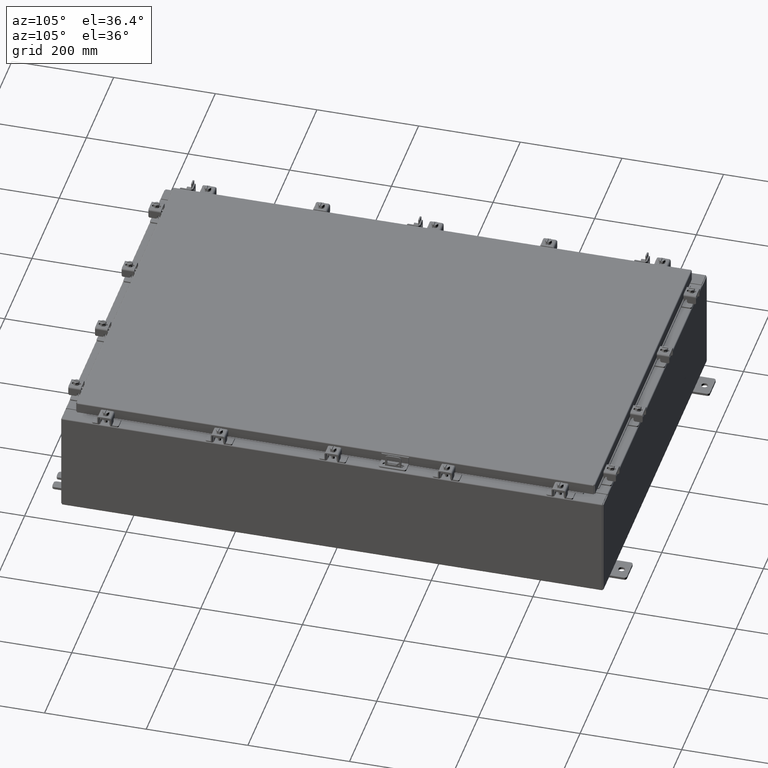
[diagram: clean part render]
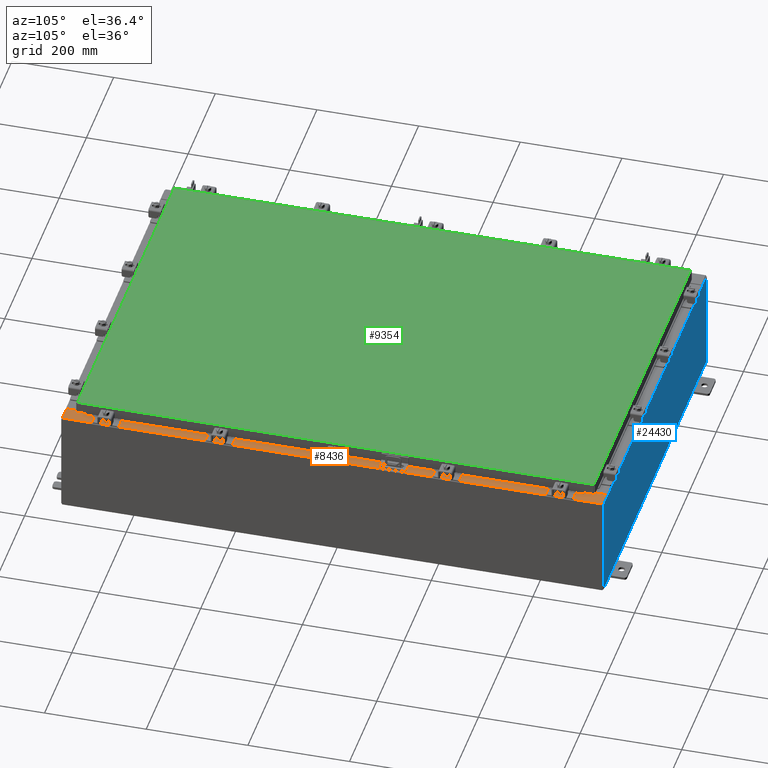
[diagram: same view with three faces highlighted in distinct colors, each labeled with its STEP entity id]
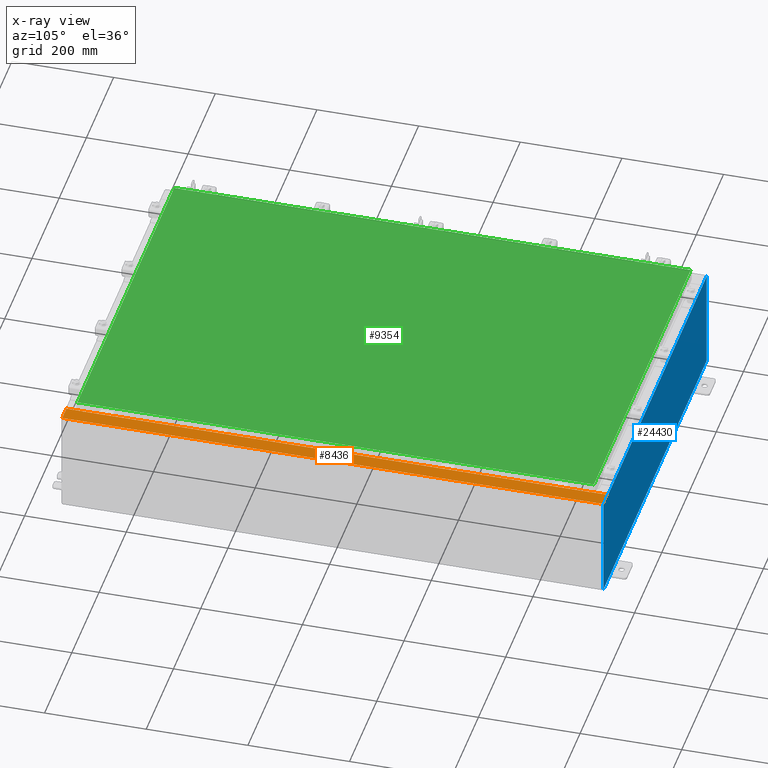
[diagram: x-ray of the same camera — body ghosted, the three highlighted faces saturated]
A machine part, auxiliary view with three faces highlighted in distinct colors.
The next image is the same camera in x-ray (body ghosted, the three faces saturated) — at least one of them is partly hidden behind the body in this view.
Their STEP definitions:

[orange] entity #8436 — the highlighted planar face has unit normal (-0, -0, -1).
#168 = VERTEX_POINT ( 'NONE', #22638 ) ;
#250 = CARTESIAN_POINT ( 'NONE',  ( 5.679009539024888300E-014, -20.92529999999998900, 7.925300000000106600 ) ) ;
#361 = VERTEX_POINT ( 'NONE', #11866 ) ;
#490 = DIRECTION ( 'NONE',  ( -1.000000000000000000, 0.0000000000000000000, 7.132762385546384700E-015 ) ) ;
#584 = CARTESIAN_POINT ( 'NONE',  ( 13.69970000000003200, 2.069333764128535100E-016, 7.925300000000008900 ) ) ;
#607 = LINE ( 'NONE', #5144, #10685 ) ;
#958 = VECTOR ( 'NONE', #16430, 39.37007874015748100 ) ;
#1108 = LINE ( 'NONE', #13583, #20755 ) ;
#1235 = CARTESIAN_POINT ( 'NONE',  ( 13.69970000000003200, 2.069333764128535100E-016, 7.925300000000008900 ) ) ;
#1505 = VECTOR ( 'NONE', #1549, 39.37007874015748100 ) ;
#1529 = CARTESIAN_POINT ( 'NONE',  ( 13.75005000000003200, -19.59374999999998900, 7.925300000000009800 ) ) ;
#1549 = DIRECTION ( 'NONE',  ( -1.000000000000000000, 4.340572780400098900E-014, -2.170286390200049500E-014 ) ) ;
#1653 = LINE ( 'NONE', #250, #21273 ) ;
#2366 = CARTESIAN_POINT ( 'NONE',  ( 14.91230000000003000, -20.92529999999998900, 7.925300000000000000 ) ) ;
#2390 = LINE ( 'NONE', #1235, #21424 ) ;
#2675 = VECTOR ( 'NONE', #23244, 39.37007874015748100 ) ;
#3318 = ORIENTED_EDGE ( 'NONE', *, *, #16800, .F. ) ;
#3384 = CARTESIAN_POINT ( 'NONE',  ( 13.69970000000003200, 19.63109999999998600, 7.925300000000008900 ) ) ;
#3635 = VERTEX_POINT ( 'NONE', #2366 ) ;
#3668 = VERTEX_POINT ( 'NONE', #18081 ) ;
#4226 = CARTESIAN_POINT ( 'NONE',  ( 5.679009539024888300E-014, 2.069333764128535100E-016, 7.925300000000105700 ) ) ;
#4717 = EDGE_LOOP ( 'NONE', ( #14337, #15199, #6846, #7616, #19128, #18140, #20206, #16842, #16005, #9365, #14820, #3318 ) ) ;
#4863 = CARTESIAN_POINT ( 'NONE',  ( 13.75005000000003200, 19.63109999999998900, 7.925300000000009800 ) ) ;
#4957 = VERTEX_POINT ( 'NONE', #15932 ) ;
#5144 = CARTESIAN_POINT ( 'NONE',  ( 13.71270000000003200, -19.59374999999998900, 7.925300000000009800 ) ) ;
#5178 = EDGE_CURVE ( 'NONE', #12540, #21121, #2390, .T. ) ;
#5199 = EDGE_CURVE ( 'NONE', #361, #6103, #607, .T. ) ;
#5406 = EDGE_CURVE ( 'NONE', #168, #6556, #6845, .T. ) ;
#5460 = CIRCLE ( 'NONE', #12172, 0.01867499999999949400 ) ;
#6103 = VERTEX_POINT ( 'NONE', #8672 ) ;
#6136 = EDGE_CURVE ( 'NONE', #6103, #3668, #11042, .T. ) ;
#6185 = AXIS2_PLACEMENT_3D ( 'NONE', #4226, #11823, #490 ) ;
#6364 = CARTESIAN_POINT ( 'NONE',  ( 13.75005000000003200, 19.63109999999998900, 7.925300000000007100 ) ) ;
#6519 = LINE ( 'NONE', #4863, #1505 ) ;
#6556 = VERTEX_POINT ( 'NONE', #15563 ) ;
#6845 = LINE ( 'NONE', #584, #15776 ) ;
#6846 = ORIENTED_EDGE ( 'NONE', *, *, #12034, .T. ) ;
#6942 = DIRECTION ( 'NONE',  ( 0.0000000000000000000, -1.000000000000000000, 2.611047864225856100E-017 ) ) ;
#7616 = ORIENTED_EDGE ( 'NONE', *, *, #23943, .F. ) ;
#7628 = DIRECTION ( 'NONE',  ( 7.132762385546384700E-015, 2.611047864225855500E-017, 1.000000000000000000 ) ) ;
#8171 = EDGE_CURVE ( 'NONE', #17640, #12540, #22872, .T. ) ;
#8436 = ADVANCED_FACE ( 'NONE', ( #12413 ), #17511, .F. ) ;
#8672 = CARTESIAN_POINT ( 'NONE',  ( 13.71270000000003200, 19.59374999999998900, 7.925300000000009800 ) ) ;
#8868 = DIRECTION ( 'NONE',  ( 7.132762385546384700E-015, 2.611047864225855500E-017, 1.000000000000000000 ) ) ;
#9365 = ORIENTED_EDGE ( 'NONE', *, *, #5199, .F. ) ;
#9622 = CIRCLE ( 'NONE', #17779, 0.01867499999999949400 ) ;
#10060 = VERTEX_POINT ( 'NONE', #14352 ) ;
#10461 = EDGE_CURVE ( 'NONE', #168, #10060, #1108, .T. ) ;
#10685 = VECTOR ( 'NONE', #14593, 39.37007874015748100 ) ;
#11042 = LINE ( 'NONE', #23888, #958 ) ;
#11823 = DIRECTION ( 'NONE',  ( -7.132762385546384700E-015, -2.611047864225855500E-017, -1.000000000000000000 ) ) ;
#11866 = CARTESIAN_POINT ( 'NONE',  ( 13.71270000000003200, -19.59374999999998900, 7.925300000000009800 ) ) ;
#12034 = EDGE_CURVE ( 'NONE', #6556, #3635, #1653, .T. ) ;
#12172 = AXIS2_PLACEMENT_3D ( 'NONE', #19046, #7628, #20968 ) ;
#12413 = FACE_OUTER_BOUND ( 'NONE', #4717, .T. ) ;
#12540 = VERTEX_POINT ( 'NONE', #12988 ) ;
#12988 = CARTESIAN_POINT ( 'NONE',  ( 13.69970000000003200, 20.92529999999998900, 7.925300000000008900 ) ) ;
#13184 = EDGE_CURVE ( 'NONE', #4957, #361, #14354, .T. ) ;
#13513 = DIRECTION ( 'NONE',  ( 1.000000000000000000, 2.189528850507526700E-047, -7.132762385546384700E-015 ) ) ;
#13583 = CARTESIAN_POINT ( 'NONE',  ( 13.69970000000003200, -19.63109999999999300, 7.925300000000008900 ) ) ;
#14337 = ORIENTED_EDGE ( 'NONE', *, *, #10461, .F. ) ;
#14352 = CARTESIAN_POINT ( 'NONE',  ( 13.75005000000003200, -19.63109999999998900, 7.925300000000008900 ) ) ;
#14354 = LINE ( 'NONE', #1529, #19445 ) ;
#14593 = DIRECTION ( 'NONE',  ( -0.0000000000000000000, 1.000000000000000000, -0.0000000000000000000 ) ) ;
#14801 = DIRECTION ( 'NONE',  ( -1.000000000000000000, 0.0000000000000000000, 0.0000000000000000000 ) ) ;
#14820 = ORIENTED_EDGE ( 'NONE', *, *, #13184, .F. ) ;
#15199 = ORIENTED_EDGE ( 'NONE', *, *, #5406, .T. ) ;
#15493 = DIRECTION ( 'NONE',  ( 1.000000000000000000, 4.340572780400098900E-014, 2.170286390200049500E-014 ) ) ;
#15563 = CARTESIAN_POINT ( 'NONE',  ( 13.69970000000003200, -20.92529999999998900, 7.925300000000009800 ) ) ;
#15776 = VECTOR ( 'NONE', #19551, 39.37007874015748100 ) ;
#15932 = CARTESIAN_POINT ( 'NONE',  ( 13.75005000000003200, -19.59374999999998900, 7.925300000000007100 ) ) ;
#16005 = ORIENTED_EDGE ( 'NONE', *, *, #6136, .F. ) ;
#16430 = DIRECTION ( 'NONE',  ( 1.000000000000000000, 0.0000000000000000000, 0.0000000000000000000 ) ) ;
#16535 = EDGE_CURVE ( 'NONE', #3668, #18093, #9622, .T. ) ;
#16800 = EDGE_CURVE ( 'NONE', #10060, #4957, #5460, .T. ) ;
#16842 = ORIENTED_EDGE ( 'NONE', *, *, #16535, .F. ) ;
#17511 = PLANE ( 'NONE',  #6185 ) ;
#17640 = VERTEX_POINT ( 'NONE', #21256 ) ;
#17779 = AXIS2_PLACEMENT_3D ( 'NONE', #20301, #8868, #22197 ) ;
#17822 = VECTOR ( 'NONE', #18424, 39.37007874015748100 ) ;
#18081 = CARTESIAN_POINT ( 'NONE',  ( 13.75005000000003200, 19.59374999999998900, 7.925300000000007100 ) ) ;
#18093 = VERTEX_POINT ( 'NONE', #6364 ) ;
#18140 = ORIENTED_EDGE ( 'NONE', *, *, #5178, .T. ) ;
#18424 = DIRECTION ( 'NONE',  ( -1.000000000000000000, -2.189528850507526700E-047, 7.132762385546384700E-015 ) ) ;
#18596 = CARTESIAN_POINT ( 'NONE',  ( 5.679009539024888300E-014, 20.92529999999999300, 7.925300000000104800 ) ) ;
#18932 = EDGE_CURVE ( 'NONE', #18093, #21121, #6519, .T. ) ;
#19046 = CARTESIAN_POINT ( 'NONE',  ( 13.75005000000003200, -19.61242499999999100, 7.925300000000009800 ) ) ;
#19128 = ORIENTED_EDGE ( 'NONE', *, *, #8171, .T. ) ;
#19445 = VECTOR ( 'NONE', #14801, 39.37007874015748100 ) ;
#19551 = DIRECTION ( 'NONE',  ( 0.0000000000000000000, -1.000000000000000000, 2.611047864225856100E-017 ) ) ;
#20206 = ORIENTED_EDGE ( 'NONE', *, *, #18932, .F. ) ;
#20301 = CARTESIAN_POINT ( 'NONE',  ( 13.75005000000003200, 19.61242499999999100, 7.925300000000009800 ) ) ;
#20755 = VECTOR ( 'NONE', #15493, 39.37007874015748100 ) ;
#20968 = DIRECTION ( 'NONE',  ( 1.000000000000000000, 0.0000000000000000000, 0.0000000000000000000 ) ) ;
#21121 = VERTEX_POINT ( 'NONE', #3384 ) ;
#21134 = LINE ( 'NONE', #21357, #2675 ) ;
#21256 = CARTESIAN_POINT ( 'NONE',  ( 14.91230000000003000, 20.92529999999998600, 7.925299999999998200 ) ) ;
#21273 = VECTOR ( 'NONE', #13513, 39.37007874015748100 ) ;
#21357 = CARTESIAN_POINT ( 'NONE',  ( 14.91230000000003000, -20.92529999999998900, 7.925300000000000000 ) ) ;
#21424 = VECTOR ( 'NONE', #6942, 39.37007874015748100 ) ;
#22197 = DIRECTION ( 'NONE',  ( 1.000000000000000000, 0.0000000000000000000, 0.0000000000000000000 ) ) ;
#22638 = CARTESIAN_POINT ( 'NONE',  ( 13.69970000000003200, -19.63109999999999300, 7.925300000000008900 ) ) ;
#22872 = LINE ( 'NONE', #18596, #17822 ) ;
#23244 = DIRECTION ( 'NONE',  ( -0.0000000000000000000, -1.000000000000000000, 2.611047864225856100E-017 ) ) ;
#23888 = CARTESIAN_POINT ( 'NONE',  ( 13.71270000000003200, 19.59374999999998900, 7.925300000000009800 ) ) ;
#23943 = EDGE_CURVE ( 'NONE', #17640, #3635, #21134, .T. ) ;

[blue] entity #24430 — the highlighted planar face has unit normal (0, -1, 0).
#42 = EDGE_LOOP ( 'NONE', ( #13574, #20034, #24078, #6491, #18353, #12431, #20395, #1161, #19395, #1422, #22402, #18214 ) ) ;
#201 = EDGE_CURVE ( 'NONE', #24362, #13792, #14168, .T. ) ;
#315 = PLANE ( 'NONE',  #22706 ) ;
#444 = DIRECTION ( 'NONE',  ( 0.0000000000000000000, 0.0000000000000000000, 1.000000000000000000 ) ) ;
#712 = CARTESIAN_POINT ( 'NONE',  ( -14.92529999999999800, 0.0000000000000000000, 3.925299999999999600 ) ) ;
#1161 = ORIENTED_EDGE ( 'NONE', *, *, #6917, .T. ) ;
#1203 = VERTEX_POINT ( 'NONE', #24070 ) ;
#1422 = ORIENTED_EDGE ( 'NONE', *, *, #201, .T. ) ;
#1820 = CARTESIAN_POINT ( 'NONE',  ( 14.92530000000000200, 0.0000000000000000000, 3.925299999999999600 ) ) ;
#1847 = CARTESIAN_POINT ( 'NONE',  ( 13.63720000000000400, 0.0000000000000000000, 3.912299999999999700 ) ) ;
#2046 = EDGE_CURVE ( 'NONE', #21222, #7231, #16796, .T. ) ;
#2944 = VECTOR ( 'NONE', #11203, 39.37007874015748100 ) ;
#3536 = VERTEX_POINT ( 'NONE', #19256 ) ;
#3952 = EDGE_CURVE ( 'NONE', #7231, #7374, #12519, .T. ) ;
#4207 = VECTOR ( 'NONE', #12059, 39.37007874015748100 ) ;
#4490 = VECTOR ( 'NONE', #12708, 39.37007874015748100 ) ;
#4496 = LINE ( 'NONE', #10280, #19079 ) ;
#4988 = CARTESIAN_POINT ( 'NONE',  ( 13.63720000000000400, 0.0000000000000000000, 3.874949999999999700 ) ) ;
#5284 = CARTESIAN_POINT ( 'NONE',  ( -13.63719999999999600, 0.0000000000000000000, 3.912299999999999700 ) ) ;
#5367 = LINE ( 'NONE', #21296, #14873 ) ;
#5506 = EDGE_CURVE ( 'NONE', #15315, #16942, #4496, .T. ) ;
#5868 = CARTESIAN_POINT ( 'NONE',  ( -13.65587499999999600, 0.0000000000000000000, 3.874949999999999700 ) ) ;
#6491 = ORIENTED_EDGE ( 'NONE', *, *, #16425, .T. ) ;
#6660 = EDGE_CURVE ( 'NONE', #13792, #13671, #18785, .T. ) ;
#6854 = EDGE_CURVE ( 'NONE', #18153, #3536, #11314, .T. ) ;
#6917 = EDGE_CURVE ( 'NONE', #21222, #1203, #24095, .T. ) ;
#7124 = CARTESIAN_POINT ( 'NONE',  ( -14.92529999999999800, 0.0000000000000000000, -3.925299999999999600 ) ) ;
#7148 = EDGE_CURVE ( 'NONE', #7374, #21910, #5367, .T. ) ;
#7231 = VERTEX_POINT ( 'NONE', #15778 ) ;
#7334 = DIRECTION ( 'NONE',  ( -0.0000000000000000000, 1.000000000000000000, -0.0000000000000000000 ) ) ;
#7374 = VERTEX_POINT ( 'NONE', #4988 ) ;
#7398 = LINE ( 'NONE', #9309, #2944 ) ;
#7499 = CARTESIAN_POINT ( 'NONE',  ( -14.92529999999999800, 0.0000000000000000000, -3.925299999999999600 ) ) ;
#7785 = DIRECTION ( 'NONE',  ( 0.0000000000000000000, 0.0000000000000000000, -1.000000000000000000 ) ) ;
#9111 = VECTOR ( 'NONE', #18145, 39.37007874015748100 ) ;
#9309 = CARTESIAN_POINT ( 'NONE',  ( -14.92529999999999800, 0.0000000000000000000, 3.925299999999999600 ) ) ;
#9421 = CARTESIAN_POINT ( 'NONE',  ( 13.67455000000000400, 0.0000000000000000000, 3.925299999999999600 ) ) ;
#9582 = AXIS2_PLACEMENT_3D ( 'NONE', #5868, #19197, #7785 ) ;
#9841 = DIRECTION ( 'NONE',  ( 0.0000000000000000000, -1.000000000000000000, 0.0000000000000000000 ) ) ;
#10118 = VECTOR ( 'NONE', #22135, 39.37007874015748100 ) ;
#10280 = CARTESIAN_POINT ( 'NONE',  ( -13.63719999999999600, 0.0000000000000000000, 0.0000000000000000000 ) ) ;
#10310 = EDGE_CURVE ( 'NONE', #1203, #24362, #19265, .T. ) ;
#10338 = CARTESIAN_POINT ( 'NONE',  ( -13.67454999999999500, 0.0000000000000000000, 3.874949999999999700 ) ) ;
#10462 = DIRECTION ( 'NONE',  ( 1.000000000000000000, 0.0000000000000000000, 0.0000000000000000000 ) ) ;
#11113 = VECTOR ( 'NONE', #18836, 39.37007874015748100 ) ;
#11203 = DIRECTION ( 'NONE',  ( 1.000000000000000000, 0.0000000000000000000, 0.0000000000000000000 ) ) ;
#11314 = LINE ( 'NONE', #20234, #10118 ) ;
#11716 = CIRCLE ( 'NONE', #9582, 0.01867499999999949400 ) ;
#11990 = LINE ( 'NONE', #23753, #20960 ) ;
#12027 = EDGE_CURVE ( 'NONE', #16942, #18153, #11716, .T. ) ;
#12059 = DIRECTION ( 'NONE',  ( -0.0000000000000000000, -0.0000000000000000000, 1.000000000000000000 ) ) ;
#12431 = ORIENTED_EDGE ( 'NONE', *, *, #3952, .F. ) ;
#12519 = CIRCLE ( 'NONE', #17613, 0.01867499999999949400 ) ;
#12708 = DIRECTION ( 'NONE',  ( 1.000000000000000000, 0.0000000000000000000, 0.0000000000000000000 ) ) ;
#13574 = ORIENTED_EDGE ( 'NONE', *, *, #6854, .F. ) ;
#13671 = VERTEX_POINT ( 'NONE', #14450 ) ;
#13792 = VERTEX_POINT ( 'NONE', #7124 ) ;
#14168 = LINE ( 'NONE', #7499, #9111 ) ;
#14450 = CARTESIAN_POINT ( 'NONE',  ( -14.92529999999999800, 0.0000000000000000000, 3.925299999999999600 ) ) ;
#14873 = VECTOR ( 'NONE', #444, 39.37007874015748100 ) ;
#14983 = CARTESIAN_POINT ( 'NONE',  ( 13.67454999999983300, 0.0000000000000000000, -5.933573842238779900E-013 ) ) ;
#15245 = CARTESIAN_POINT ( 'NONE',  ( 14.92530000000000200, 0.0000000000000000000, -3.925299999999999600 ) ) ;
#15315 = VERTEX_POINT ( 'NONE', #5284 ) ;
#15675 = CARTESIAN_POINT ( 'NONE',  ( -13.63719999999999600, 0.0000000000000000000, 3.874949999999999700 ) ) ;
#15778 = CARTESIAN_POINT ( 'NONE',  ( 13.67455000000000200, 0.0000000000000000000, 3.874949999999999700 ) ) ;
#16425 = EDGE_CURVE ( 'NONE', #15315, #21910, #11990, .T. ) ;
#16796 = LINE ( 'NONE', #14983, #11113 ) ;
#16942 = VERTEX_POINT ( 'NONE', #15675 ) ;
#16946 = DIRECTION ( 'NONE',  ( 0.0000000000000000000, 0.0000000000000000000, -1.000000000000000000 ) ) ;
#17236 = FACE_OUTER_BOUND ( 'NONE', #42, .T. ) ;
#17613 = AXIS2_PLACEMENT_3D ( 'NONE', #18740, #7334, #20662 ) ;
#18145 = DIRECTION ( 'NONE',  ( -1.000000000000000000, -0.0000000000000000000, -0.0000000000000000000 ) ) ;
#18153 = VERTEX_POINT ( 'NONE', #10338 ) ;
#18214 = ORIENTED_EDGE ( 'NONE', *, *, #19741, .T. ) ;
#18353 = ORIENTED_EDGE ( 'NONE', *, *, #7148, .F. ) ;
#18740 = CARTESIAN_POINT ( 'NONE',  ( 13.65587500000000200, 0.0000000000000000000, 3.874949999999999700 ) ) ;
#18785 = LINE ( 'NONE', #712, #4207 ) ;
#18836 = DIRECTION ( 'NONE',  ( -4.340572780400004900E-014, 0.0000000000000000000, -1.000000000000000000 ) ) ;
#19079 = VECTOR ( 'NONE', #21771, 39.37007874015748100 ) ;
#19197 = DIRECTION ( 'NONE',  ( -0.0000000000000000000, 1.000000000000000000, -0.0000000000000000000 ) ) ;
#19256 = CARTESIAN_POINT ( 'NONE',  ( -13.67454999999999500, 0.0000000000000000000, 3.925299999999999600 ) ) ;
#19265 = LINE ( 'NONE', #1820, #24290 ) ;
#19395 = ORIENTED_EDGE ( 'NONE', *, *, #10310, .T. ) ;
#19741 = EDGE_CURVE ( 'NONE', #13671, #3536, #7398, .T. ) ;
#20034 = ORIENTED_EDGE ( 'NONE', *, *, #12027, .F. ) ;
#20234 = CARTESIAN_POINT ( 'NONE',  ( -13.67454999999999500, 0.0000000000000000000, 0.0000000000000000000 ) ) ;
#20395 = ORIENTED_EDGE ( 'NONE', *, *, #2046, .F. ) ;
#20662 = DIRECTION ( 'NONE',  ( 0.0000000000000000000, 0.0000000000000000000, -1.000000000000000000 ) ) ;
#20960 = VECTOR ( 'NONE', #10462, 39.37007874015748100 ) ;
#21222 = VERTEX_POINT ( 'NONE', #9421 ) ;
#21258 = CARTESIAN_POINT ( 'NONE',  ( 0.0000000000000000000, 0.0000000000000000000, 0.0000000000000000000 ) ) ;
#21296 = CARTESIAN_POINT ( 'NONE',  ( 13.63720000000000400, 0.0000000000000000000, 0.0000000000000000000 ) ) ;
#21771 = DIRECTION ( 'NONE',  ( 0.0000000000000000000, 0.0000000000000000000, -1.000000000000000000 ) ) ;
#21910 = VERTEX_POINT ( 'NONE', #1847 ) ;
#22135 = DIRECTION ( 'NONE',  ( 0.0000000000000000000, 0.0000000000000000000, 1.000000000000000000 ) ) ;
#22212 = CARTESIAN_POINT ( 'NONE',  ( -14.92529999999999800, 0.0000000000000000000, 3.925299999999999600 ) ) ;
#22402 = ORIENTED_EDGE ( 'NONE', *, *, #6660, .T. ) ;
#22706 = AXIS2_PLACEMENT_3D ( 'NONE', #21258, #9841, #23125 ) ;
#23125 = DIRECTION ( 'NONE',  ( 0.0000000000000000000, -0.0000000000000000000, -1.000000000000000000 ) ) ;
#23753 = CARTESIAN_POINT ( 'NONE',  ( -13.63719999999999800, 0.0000000000000000000, 3.912299999999999700 ) ) ;
#24070 = CARTESIAN_POINT ( 'NONE',  ( 14.92530000000000200, 0.0000000000000000000, 3.925299999999999600 ) ) ;
#24078 = ORIENTED_EDGE ( 'NONE', *, *, #5506, .F. ) ;
#24095 = LINE ( 'NONE', #22212, #4490 ) ;
#24290 = VECTOR ( 'NONE', #16946, 39.37007874015748100 ) ;
#24362 = VERTEX_POINT ( 'NONE', #15245 ) ;
#24430 = ADVANCED_FACE ( 'NONE', ( #17236 ), #315, .F. ) ;

[green] entity #9354 — the highlighted planar face has unit normal (0, 0, -1).
#678 = VECTOR ( 'NONE', #7844, 39.37007874015748100 ) ;
#1102 = CARTESIAN_POINT ( 'NONE',  ( 0.0000000000000000000, 0.0000000000000000000, 0.0000000000000000000 ) ) ;
#2106 = ORIENTED_EDGE ( 'NONE', *, *, #21179, .T. ) ;
#2137 = CARTESIAN_POINT ( 'NONE',  ( 13.99029999999999800, 20.00630000000000700, 2.185478394931410600E-015 ) ) ;
#4015 = LINE ( 'NONE', #5446, #7841 ) ;
#4527 = VERTEX_POINT ( 'NONE', #7133 ) ;
#5446 = CARTESIAN_POINT ( 'NONE',  ( -13.99029999999999800, 20.00630000000000300, 0.0000000000000000000 ) ) ;
#5611 = CARTESIAN_POINT ( 'NONE',  ( 13.99029999999999800, 20.00630000000000700, 2.185478394931410600E-015 ) ) ;
#5717 = LINE ( 'NONE', #2137, #678 ) ;
#6188 = FACE_OUTER_BOUND ( 'NONE', #7420, .T. ) ;
#6395 = CARTESIAN_POINT ( 'NONE',  ( 13.99030000000000000, -20.00630000000000300, -1.092739197465705300E-015 ) ) ;
#6797 = DIRECTION ( 'NONE',  ( -1.000000000000000000, 0.0000000000000000000, -0.0000000000000000000 ) ) ;
#7053 = VERTEX_POINT ( 'NONE', #18987 ) ;
#7133 = CARTESIAN_POINT ( 'NONE',  ( -13.99029999999999800, 20.00630000000000000, 0.0000000000000000000 ) ) ;
#7291 = VECTOR ( 'NONE', #8217, 39.37007874015748100 ) ;
#7337 = DIRECTION ( 'NONE',  ( 0.0000000000000000000, -1.000000000000000000, 0.0000000000000000000 ) ) ;
#7420 = EDGE_LOOP ( 'NONE', ( #18808, #9985, #11340, #2106 ) ) ;
#7841 = VECTOR ( 'NONE', #7337, 39.37007874015748100 ) ;
#7844 = DIRECTION ( 'NONE',  ( -1.000000000000000000, -0.0000000000000000000, -0.0000000000000000000 ) ) ;
#8217 = DIRECTION ( 'NONE',  ( 0.0000000000000000000, 1.000000000000000000, 0.0000000000000000000 ) ) ;
#9354 = ADVANCED_FACE ( 'NONE', ( #6188 ), #21957, .F. ) ;
#9985 = ORIENTED_EDGE ( 'NONE', *, *, #11435, .T. ) ;
#10741 = CARTESIAN_POINT ( 'NONE',  ( -13.99029999999999600, -20.00630000000001000, -2.185478394931410600E-015 ) ) ;
#11340 = ORIENTED_EDGE ( 'NONE', *, *, #17595, .T. ) ;
#11435 = EDGE_CURVE ( 'NONE', #21498, #15439, #23637, .T. ) ;
#13880 = CARTESIAN_POINT ( 'NONE',  ( 13.99030000000000000, -20.00630000000000300, -1.092739197465705300E-015 ) ) ;
#14698 = VECTOR ( 'NONE', #20252, 39.37007874015748100 ) ;
#15439 = VERTEX_POINT ( 'NONE', #5611 ) ;
#17595 = EDGE_CURVE ( 'NONE', #15439, #4527, #5717, .T. ) ;
#18239 = DIRECTION ( 'NONE',  ( 0.0000000000000000000, 0.0000000000000000000, -1.000000000000000000 ) ) ;
#18808 = ORIENTED_EDGE ( 'NONE', *, *, #21042, .T. ) ;
#18987 = CARTESIAN_POINT ( 'NONE',  ( -13.99029999999999600, -20.00630000000001000, -2.185478394931410600E-015 ) ) ;
#19768 = LINE ( 'NONE', #10741, #14698 ) ;
#20103 = AXIS2_PLACEMENT_3D ( 'NONE', #1102, #18239, #6797 ) ;
#20252 = DIRECTION ( 'NONE',  ( 1.000000000000000000, -0.0000000000000000000, -0.0000000000000000000 ) ) ;
#21042 = EDGE_CURVE ( 'NONE', #7053, #21498, #19768, .T. ) ;
#21179 = EDGE_CURVE ( 'NONE', #4527, #7053, #4015, .T. ) ;
#21498 = VERTEX_POINT ( 'NONE', #6395 ) ;
#21957 = PLANE ( 'NONE',  #20103 ) ;
#23637 = LINE ( 'NONE', #13880, #7291 ) ;